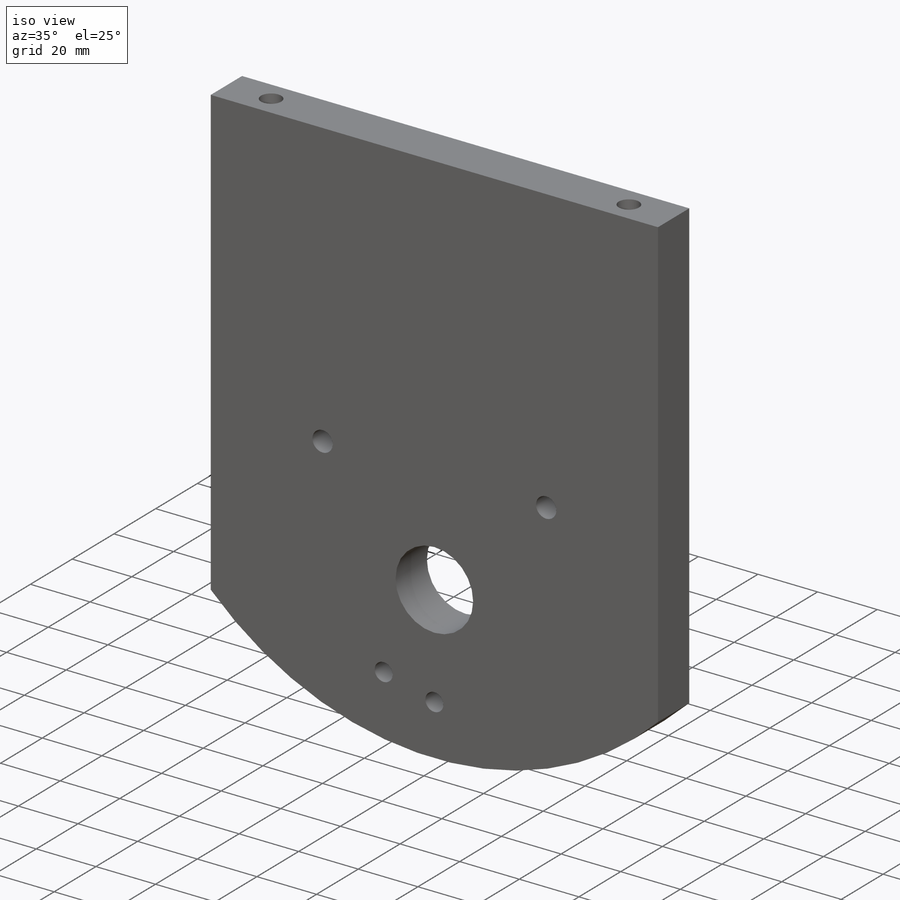
[diagram: iso view]
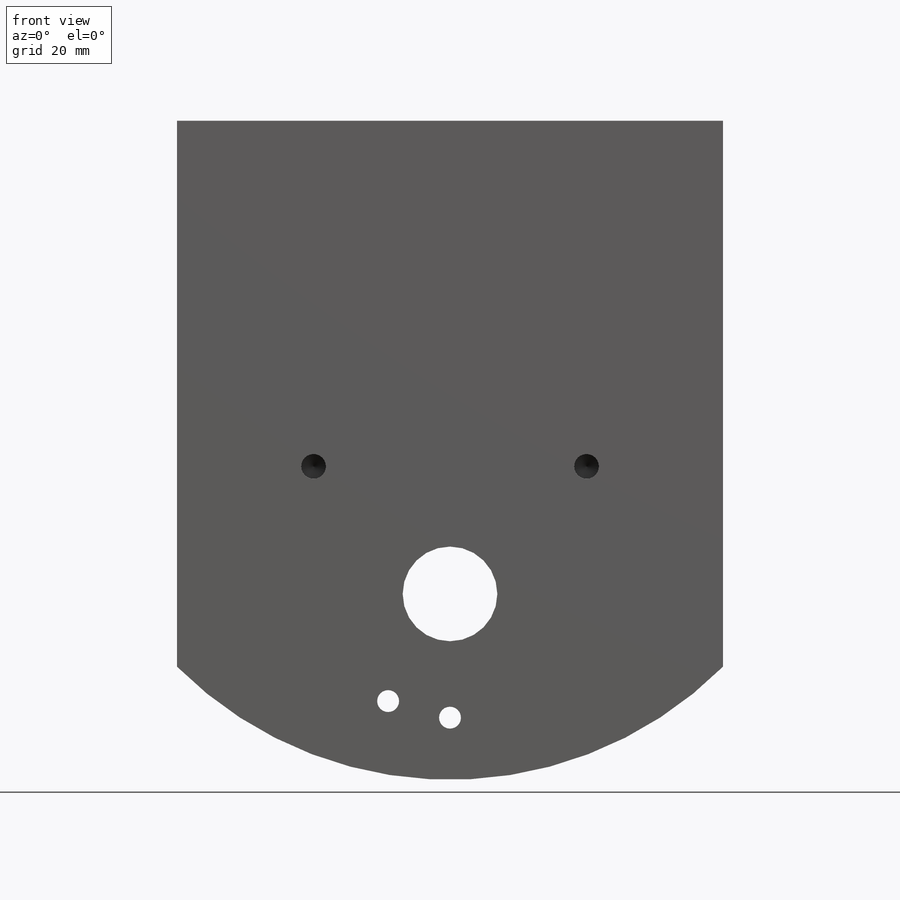
[diagram: front view]
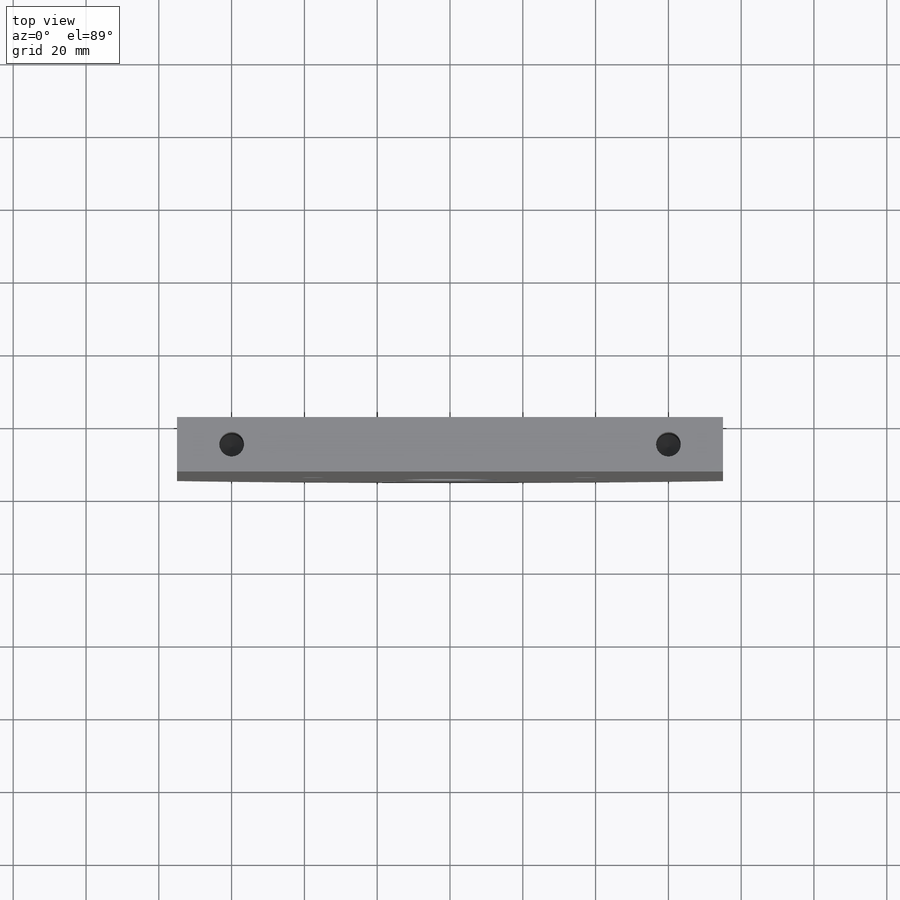
[diagram: top view]
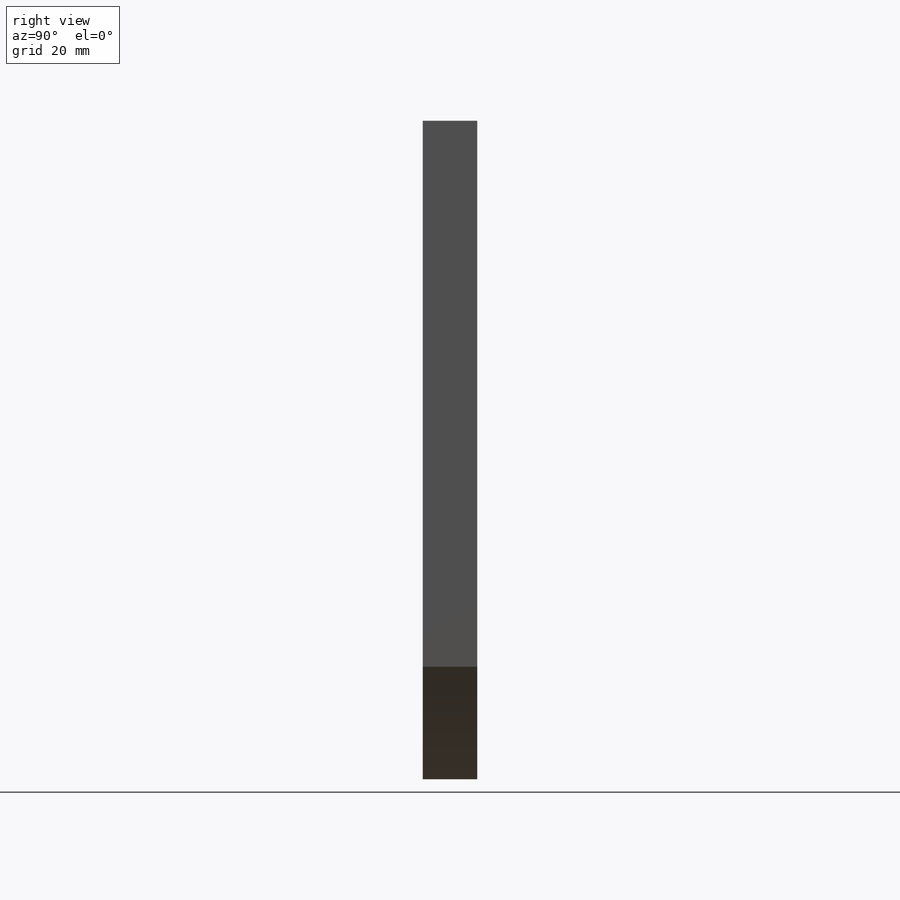
[diagram: right view]
SOLIDWORKS PART (.sldprt)
format: sldprt  version: not decoded by parser v0  size: 231,424 bytes
history: native  units: mm
features: sketch x9, hole x2, material x1, extrude x1, cut_extrude x1 (+12 scaffold rows collapsed)
feature tree (26):
  scaffold x12  (default folders/planes/origin — collapsed)
  material  "Material <not specified>"
  sketch  "Sketch2"  dims[D1=150.0mm D2=90.0mm D3=60.0mm]
  extrude  "Boss-Extrude1"  Depth=15mm
  sketch  "Sketch3"  dims[c1.D1=~3.777393mm c1.D2=~34.534146mm c1.D3=3.0mm c2.D1=130.0mm c2.D2=~23.250337mm c3.D2=~133.143934deg]
  cut_extrude  "Cut-Extrude1"  [1 undecoded]
  sketch  "Sketch6"  dims[c1.D1=90.0mm c1.D2=95.0mm c2.D1=37.5mm c2.D3=37.5mm]
  sketch  "Sketch9"
  hole  "Tap Drill for M8x1.25 Tap2"  Diameter=6.8mm Depth=10mm
  sketch  "Sketch11"
  sketch  "Sketch10"  dims[hole-wizard template sketch: 47 standard entries collapsed; hole parameters kept: c15.Hole Depth=10.0mm c15.D3=~14.816244mm c15.Drill Angle=118.0deg]
  sketch  "Sketch12"  dims[D1=60.0mm D2=60.0mm]
  hole  "Tap Drill for M8x1.25 Tap3"  Diameter=6.8mm Depth=40mm
  sketch  "Sketch14"
  sketch  "Sketch15"  dims[hole-wizard template sketch: 47 standard entries collapsed; hole parameters kept: c15.Hole Depth=40.0mm c15.D3=~14.816244mm c15.Drill Angle=118.0deg]
decode coverage: 9 of 13 modeling features carry decoded parameters
note: ~ marks probable driven/reference dimensions
note: 1 parameter value undecoded
note: suppression state not decoded; provenance and decode notes live in map.json
